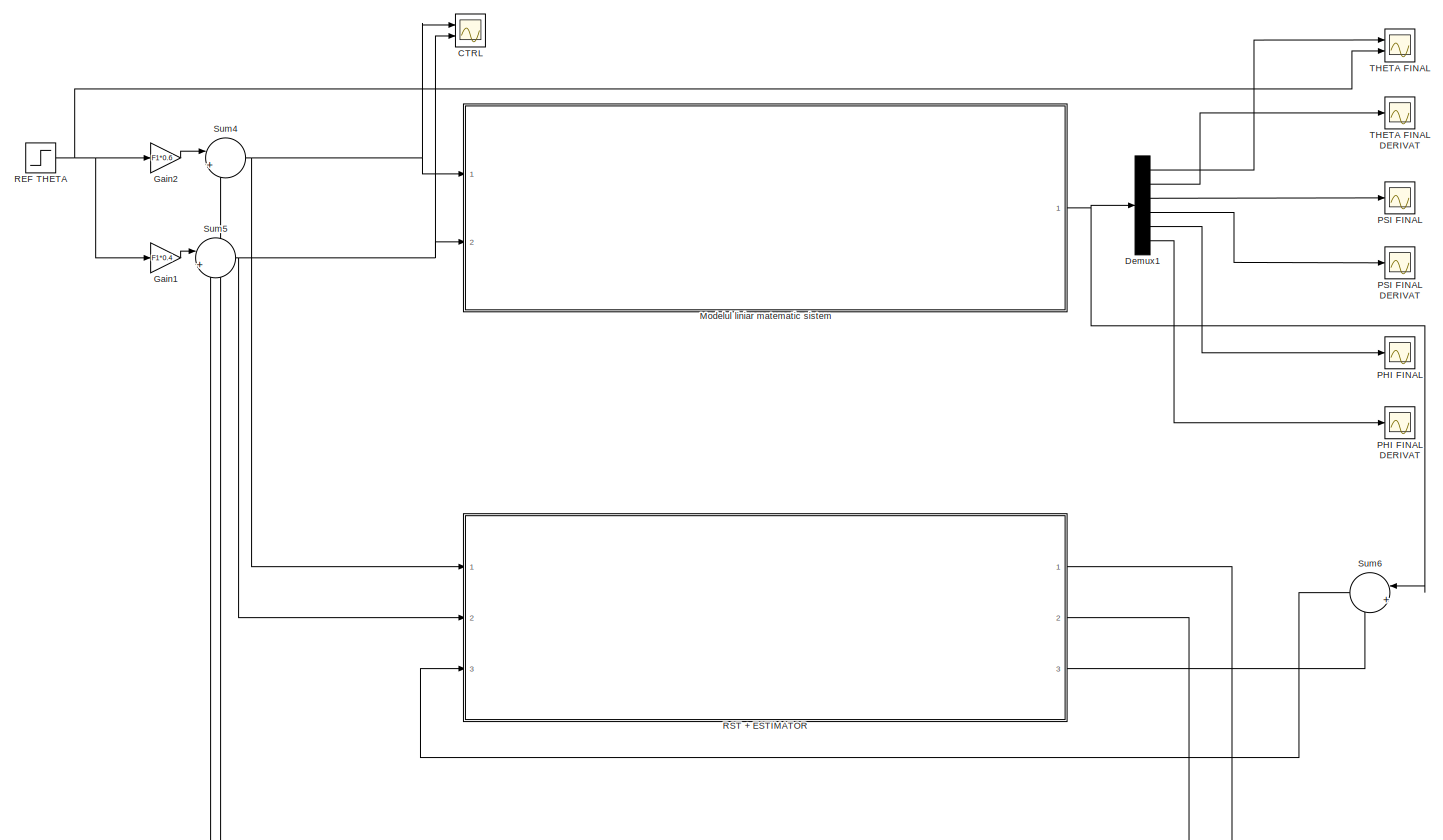
[diagram: root canvas - part 1/1, most of the canvas]
MODEL slx_d8414251c9a4
KIND model
CONFIG AbsTol = auto
CONFIG EnableMultiTasking = off
CONFIG FixedStep = auto
CONFIG MaxStep = auto
CONFIG MinStep = auto
CONFIG RelTol = 1e-3
CONFIG SampleTimeConstraint = Unconstrained
CONFIG Solver = VariableStepAuto
CONFIG SolverName = VariableStepAuto
CONFIG StartTime = 0.0
CONFIG StopTime = 100
BLOCK [Scope] CTRL 
  Floating = off
  NumInputPorts = 2
  Ports = [2]
  ScopeSpecificationString = Simulink.scopes.TimeScopeBlockCfg('CurrentConfiguration', extmgr.ConfigurationSet(extmgr.Configuration('Core','General UI',true),extmgr.Configuration('Core','Source UI',true),extmgr.Configuration('Sources','WiredSimulink',true,'DataLoggingVariableName','ScopeData1'),extmgr.Configuration('Visuals','Time Domain',true,'SerializedDisplays',{struct('MinYLimReal','-0.45605','MaxYLimReal','0.68234','YLab...<+1478ch>
BLOCK [Demux] Demux1
  DisplayOption = bar
  Outputs = 6
  Ports = [1, 6]
BLOCK [Gain] Gain1
  Gain = F1*0.4
  OutDataTypeStr = Inherit: Inherit via internal rule
  ParamDataTypeStr = Inherit: Inherit via internal rule
  SaturateOnIntegerOverflow = off
BLOCK [Gain] Gain2
  Gain = F1*0.6
  OutDataTypeStr = Inherit: Inherit via internal rule
  ParamDataTypeStr = Inherit: Inherit via internal rule
  SaturateOnIntegerOverflow = off
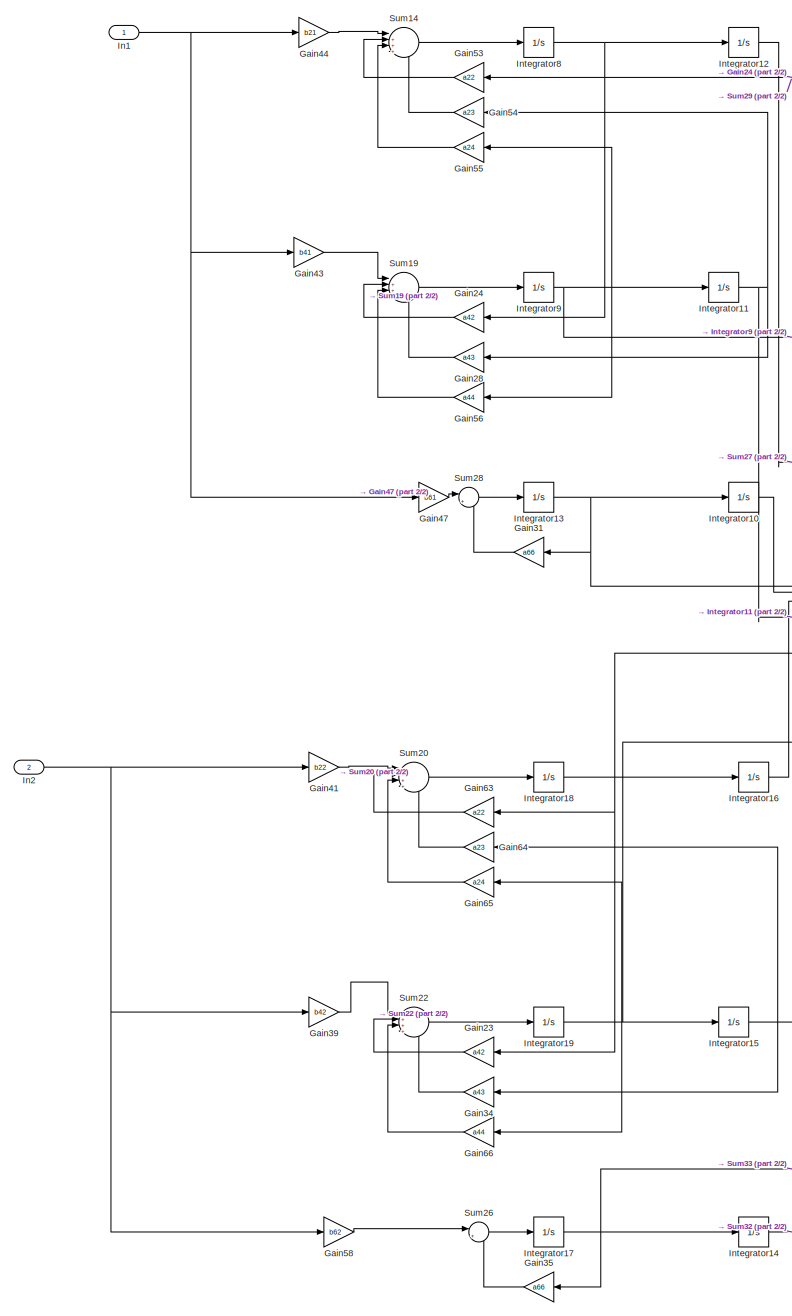
[diagram: Modelul liniar matematic sistem - part 1/2, left side, full height]
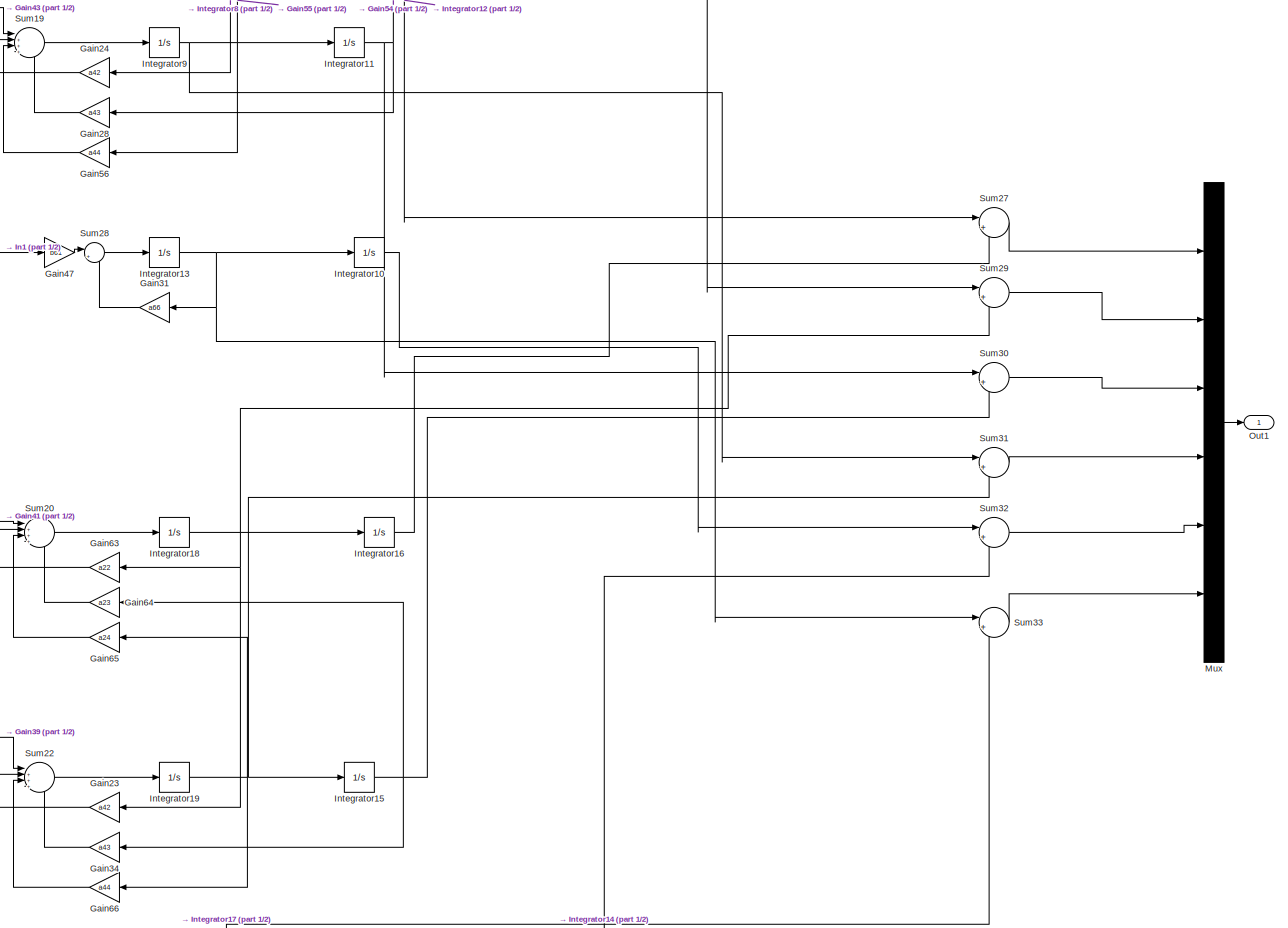
[diagram: Modelul liniar matematic sistem - part 2/2, full width, middle band]
BLOCK [SubSystem] Modelul liniar matematic sistem
  Ports = [2, 1]
  RequestExecContextInheritance = off
BLOCK [Gain] Modelul liniar matematic sistem/Gain23
  Gain = a42
  OutDataTypeStr = Inherit: Inherit via internal rule
  ParamDataTypeStr = Inherit: Inherit via internal rule
  SaturateOnIntegerOverflow = off
BLOCK [Gain] Modelul liniar matematic sistem/Gain24
  Gain = a42
  OutDataTypeStr = Inherit: Inherit via internal rule
  ParamDataTypeStr = Inherit: Inherit via internal rule
  SaturateOnIntegerOverflow = off
BLOCK [Gain] Modelul liniar matematic sistem/Gain28
  Gain = a43
  OutDataTypeStr = Inherit: Inherit via internal rule
  ParamDataTypeStr = Inherit: Inherit via internal rule
  SaturateOnIntegerOverflow = off
BLOCK [Gain] Modelul liniar matematic sistem/Gain31
  Gain = a66
  OutDataTypeStr = Inherit: Inherit via internal rule
  ParamDataTypeStr = Inherit: Inherit via internal rule
  SaturateOnIntegerOverflow = off
BLOCK [Gain] Modelul liniar matematic sistem/Gain34
  Gain = a43
  OutDataTypeStr = Inherit: Inherit via internal rule
  ParamDataTypeStr = Inherit: Inherit via internal rule
  SaturateOnIntegerOverflow = off
BLOCK [Gain] Modelul liniar matematic sistem/Gain35
  Gain = a66
  OutDataTypeStr = Inherit: Inherit via internal rule
  ParamDataTypeStr = Inherit: Inherit via internal rule
  SaturateOnIntegerOverflow = off
BLOCK [Gain] Modelul liniar matematic sistem/Gain39
  Gain = b42
  OutDataTypeStr = Inherit: Inherit via internal rule
  ParamDataTypeStr = Inherit: Inherit via internal rule
  SaturateOnIntegerOverflow = off
BLOCK [Gain] Modelul liniar matematic sistem/Gain41
  Gain = b22
  OutDataTypeStr = Inherit: Inherit via internal rule
  ParamDataTypeStr = Inherit: Inherit via internal rule
  SaturateOnIntegerOverflow = off
BLOCK [Gain] Modelul liniar matematic sistem/Gain43
  Gain = b41
  OutDataTypeStr = Inherit: Inherit via internal rule
  ParamDataTypeStr = Inherit: Inherit via internal rule
  SaturateOnIntegerOverflow = off
BLOCK [Gain] Modelul liniar matematic sistem/Gain44
  Gain = b21
  OutDataTypeStr = Inherit: Inherit via internal rule
  ParamDataTypeStr = Inherit: Inherit via internal rule
  SaturateOnIntegerOverflow = off
BLOCK [Gain] Modelul liniar matematic sistem/Gain47
  Gain = b61
  OutDataTypeStr = Inherit: Inherit via internal rule
  ParamDataTypeStr = Inherit: Inherit via internal rule
  SaturateOnIntegerOverflow = off
BLOCK [Gain] Modelul liniar matematic sistem/Gain53
  Gain = a22
  OutDataTypeStr = Inherit: Inherit via internal rule
  ParamDataTypeStr = Inherit: Inherit via internal rule
  SaturateOnIntegerOverflow = off
BLOCK [Gain] Modelul liniar matematic sistem/Gain54
  Gain = a23
  OutDataTypeStr = Inherit: Inherit via internal rule
  ParamDataTypeStr = Inherit: Inherit via internal rule
  SaturateOnIntegerOverflow = off
BLOCK [Gain] Modelul liniar matematic sistem/Gain55
  Gain = a24
  OutDataTypeStr = Inherit: Inherit via internal rule
  ParamDataTypeStr = Inherit: Inherit via internal rule
  SaturateOnIntegerOverflow = off
BLOCK [Gain] Modelul liniar matematic sistem/Gain56
  Gain = a44
  OutDataTypeStr = Inherit: Inherit via internal rule
  ParamDataTypeStr = Inherit: Inherit via internal rule
  SaturateOnIntegerOverflow = off
BLOCK [Gain] Modelul liniar matematic sistem/Gain58
  Gain = b62
  OutDataTypeStr = Inherit: Inherit via internal rule
  ParamDataTypeStr = Inherit: Inherit via internal rule
  SaturateOnIntegerOverflow = off
BLOCK [Gain] Modelul liniar matematic sistem/Gain63
  Gain = a22
  OutDataTypeStr = Inherit: Inherit via internal rule
  ParamDataTypeStr = Inherit: Inherit via internal rule
  SaturateOnIntegerOverflow = off
BLOCK [Gain] Modelul liniar matematic sistem/Gain64
  Gain = a23
  OutDataTypeStr = Inherit: Inherit via internal rule
  ParamDataTypeStr = Inherit: Inherit via internal rule
  SaturateOnIntegerOverflow = off
BLOCK [Gain] Modelul liniar matematic sistem/Gain65
  Gain = a24
  OutDataTypeStr = Inherit: Inherit via internal rule
  ParamDataTypeStr = Inherit: Inherit via internal rule
  SaturateOnIntegerOverflow = off
BLOCK [Gain] Modelul liniar matematic sistem/Gain66
  Gain = a44
  OutDataTypeStr = Inherit: Inherit via internal rule
  ParamDataTypeStr = Inherit: Inherit via internal rule
  SaturateOnIntegerOverflow = off
BLOCK [Inport] Modelul liniar matematic sistem/In1
  IconDisplay = Port number
BLOCK [Inport] Modelul liniar matematic sistem/In2
  IconDisplay = Port number
  Port = 2
BLOCK [Integrator] Modelul liniar matematic sistem/Integrator10
  Ports = [1, 1]
BLOCK [Integrator] Modelul liniar matematic sistem/Integrator11
  Ports = [1, 1]
BLOCK [Integrator] Modelul liniar matematic sistem/Integrator12
  Ports = [1, 1]
BLOCK [Integrator] Modelul liniar matematic sistem/Integrator13
  Ports = [1, 1]
BLOCK [Integrator] Modelul liniar matematic sistem/Integrator14
  Ports = [1, 1]
BLOCK [Integrator] Modelul liniar matematic sistem/Integrator15
  Ports = [1, 1]
BLOCK [Integrator] Modelul liniar matematic sistem/Integrator16
  Ports = [1, 1]
BLOCK [Integrator] Modelul liniar matematic sistem/Integrator17
  Ports = [1, 1]
BLOCK [Integrator] Modelul liniar matematic sistem/Integrator18
  Ports = [1, 1]
BLOCK [Integrator] Modelul liniar matematic sistem/Integrator19
  Ports = [1, 1]
BLOCK [Integrator] Modelul liniar matematic sistem/Integrator8
  Ports = [1, 1]
BLOCK [Integrator] Modelul liniar matematic sistem/Integrator9
  Ports = [1, 1]
BLOCK [Mux] Modelul liniar matematic sistem/Mux
  DisplayOption = bar
  Inputs = 6
  Ports = [6, 1]
BLOCK [Outport] Modelul liniar matematic sistem/Out1
  IconDisplay = Port number
BLOCK [Sum] Modelul liniar matematic sistem/Sum14
  IconShape = round
  InputSameDT = off
  Inputs = |++++
  OutDataTypeStr = Inherit: Inherit via internal rule
  Ports = [4, 1]
  SaturateOnIntegerOverflow = off
BLOCK [Sum] Modelul liniar matematic sistem/Sum19
  IconShape = round
  InputSameDT = off
  Inputs = |++++
  OutDataTypeStr = Inherit: Inherit via internal rule
  Ports = [4, 1]
  SaturateOnIntegerOverflow = off
BLOCK [Sum] Modelul liniar matematic sistem/Sum20
  IconShape = round
  InputSameDT = off
  Inputs = |++++
  OutDataTypeStr = Inherit: Inherit via internal rule
  Ports = [4, 1]
  SaturateOnIntegerOverflow = off
BLOCK [Sum] Modelul liniar matematic sistem/Sum22
  IconShape = round
  InputSameDT = off
  Inputs = |++++
  OutDataTypeStr = Inherit: Inherit via internal rule
  Ports = [4, 1]
  SaturateOnIntegerOverflow = off
BLOCK [Sum] Modelul liniar matematic sistem/Sum26
  IconShape = round
  InputSameDT = off
  Inputs = |++
  OutDataTypeStr = Inherit: Inherit via internal rule
  Ports = [2, 1]
  SaturateOnIntegerOverflow = off
BLOCK [Sum] Modelul liniar matematic sistem/Sum27
  IconShape = round
  InputSameDT = off
  Inputs = |++
  OutDataTypeStr = Inherit: Inherit via internal rule
  Ports = [2, 1]
  SaturateOnIntegerOverflow = off
BLOCK [Sum] Modelul liniar matematic sistem/Sum28
  IconShape = round
  InputSameDT = off
  Inputs = |++
  OutDataTypeStr = Inherit: Inherit via internal rule
  Ports = [2, 1]
  SaturateOnIntegerOverflow = off
BLOCK [Sum] Modelul liniar matematic sistem/Sum29
  IconShape = round
  InputSameDT = off
  Inputs = |++
  OutDataTypeStr = Inherit: Inherit via internal rule
  Ports = [2, 1]
  SaturateOnIntegerOverflow = off
BLOCK [Sum] Modelul liniar matematic sistem/Sum30
  IconShape = round
  InputSameDT = off
  Inputs = |++
  OutDataTypeStr = Inherit: Inherit via internal rule
  Ports = [2, 1]
  SaturateOnIntegerOverflow = off
BLOCK [Sum] Modelul liniar matematic sistem/Sum31
  IconShape = round
  InputSameDT = off
  Inputs = |++
  OutDataTypeStr = Inherit: Inherit via internal rule
  Ports = [2, 1]
  SaturateOnIntegerOverflow = off
BLOCK [Sum] Modelul liniar matematic sistem/Sum32
  IconShape = round
  InputSameDT = off
  Inputs = |++
  OutDataTypeStr = Inherit: Inherit via internal rule
  Ports = [2, 1]
  SaturateOnIntegerOverflow = off
BLOCK [Sum] Modelul liniar matematic sistem/Sum33
  IconShape = round
  InputSameDT = off
  Inputs = |++
  OutDataTypeStr = Inherit: Inherit via internal rule
  Ports = [2, 1]
  SaturateOnIntegerOverflow = off
BLOCK [Scope] PHI FINAL
  Floating = off
  NumInputPorts = 1
  Ports = [1]
  ScopeSpecificationString = Simulink.scopes.TimeScopeBlockCfg('CurrentConfiguration', extmgr.ConfigurationSet(extmgr.Configuration('Core','General UI',true),extmgr.Configuration('Core','Source UI',true),extmgr.Configuration('Sources','WiredSimulink',true,'DataLoggingVariableName','ScopeData3'),extmgr.Configuration('Visuals','Time Domain',true,'SerializedDisplays',{struct('MinYLimReal','-0.85228','MaxYLimReal','0.09841','YLab...<+1419ch>
BLOCK [Scope] PHI FINAL DERIVAT 
  Floating = off
  NumInputPorts = 1
  Ports = [1]
  ScopeSpecificationString = Simulink.scopes.TimeScopeBlockCfg('CurrentConfiguration', extmgr.ConfigurationSet(extmgr.Configuration('Core','General UI',true),extmgr.Configuration('Core','Source UI',true),extmgr.Configuration('Sources','WiredSimulink',true,'DataLoggingVariableName','ScopeData2'),extmgr.Configuration('Visuals','Time Domain',true,'SerializedDisplays',{struct('MinYLimReal','-0.44748','MaxYLimReal','0.08352','YLab...<+1425ch>
BLOCK [Scope] PSI FINAL
  Floating = off
  NumInputPorts = 1
  Ports = [1]
  ScopeSpecificationString = Simulink.scopes.TimeScopeBlockCfg('CurrentConfiguration', extmgr.ConfigurationSet(extmgr.Configuration('Core','General UI',true),extmgr.Configuration('Core','Source UI',true),extmgr.Configuration('Sources','WiredSimulink',true,'DataLoggingVariableName','ScopeData5'),extmgr.Configuration('Visuals','Time Domain',true,'SerializedDisplays',{struct('MinYLimReal','-0.00428','MaxYLimReal','0.00872','YLab...<+1447ch>
BLOCK [Scope] PSI FINAL DERIVAT 
  Floating = off
  NumInputPorts = 1
  Ports = [1]
  ScopeSpecificationString = Simulink.scopes.TimeScopeBlockCfg('CurrentConfiguration', extmgr.ConfigurationSet(extmgr.Configuration('Core','General UI',true),extmgr.Configuration('Core','Source UI',true),extmgr.Configuration('Sources','WiredSimulink',true,'DataLoggingVariableName','ScopeData4'),extmgr.Configuration('Visuals','Time Domain',true,'SerializedDisplays',{struct('MinYLimReal','-0.01554','MaxYLimReal','0.02337','YLab...<+1450ch>
BLOCK [Step] REF THETA 
  SampleTime = 0
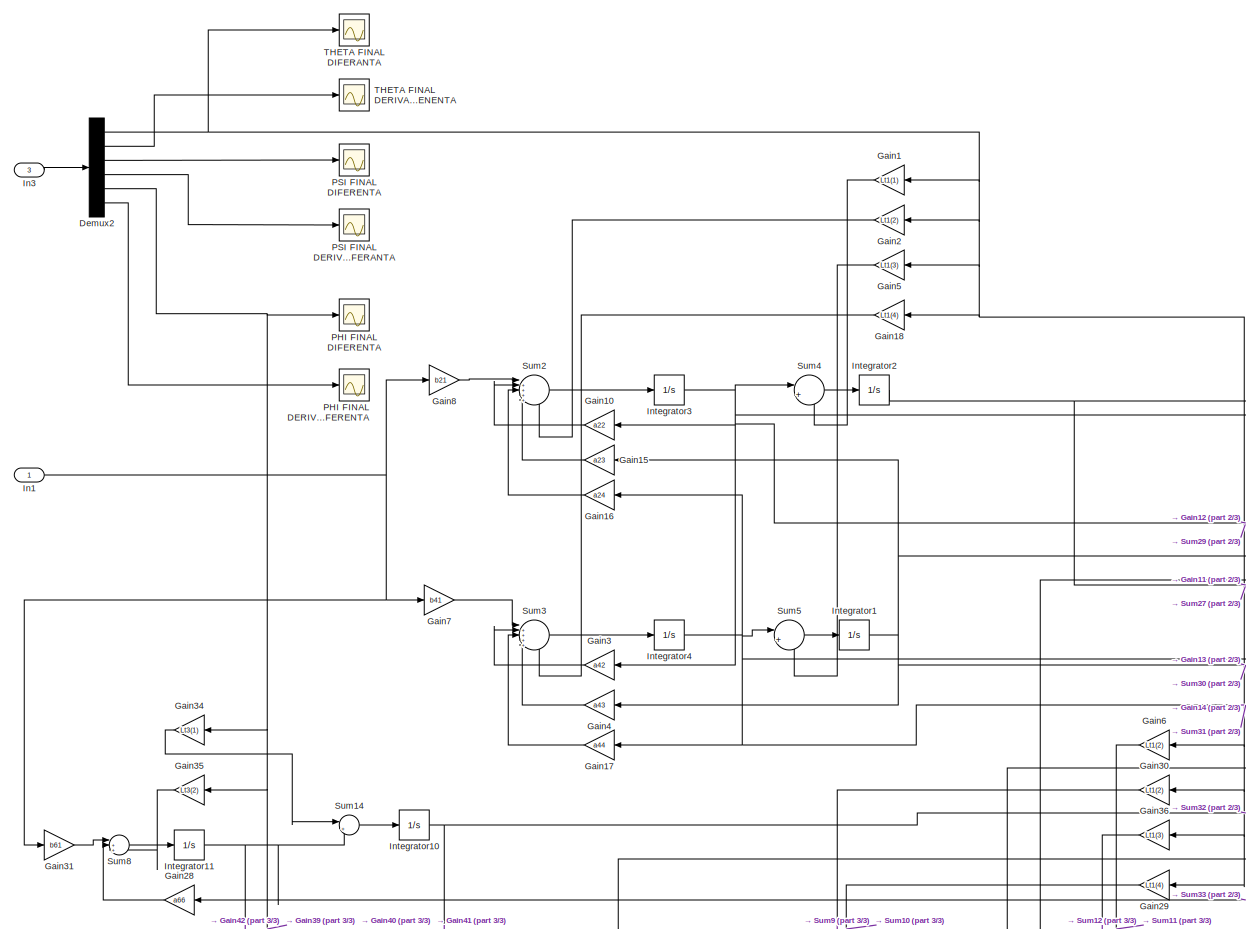
[diagram: RST + ESTIMATOR  - part 1/3, top left region]
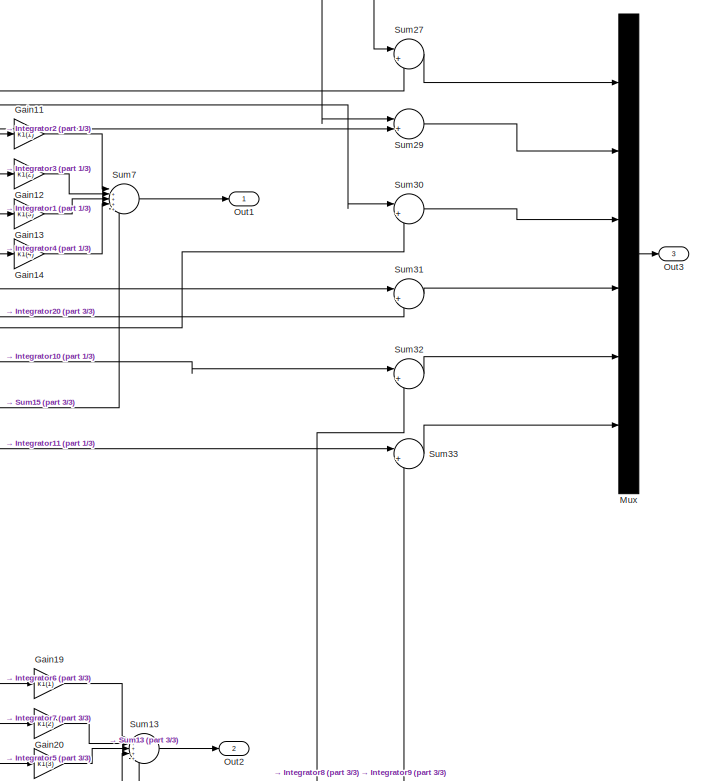
[diagram: RST + ESTIMATOR  - part 2/3, middle right region]
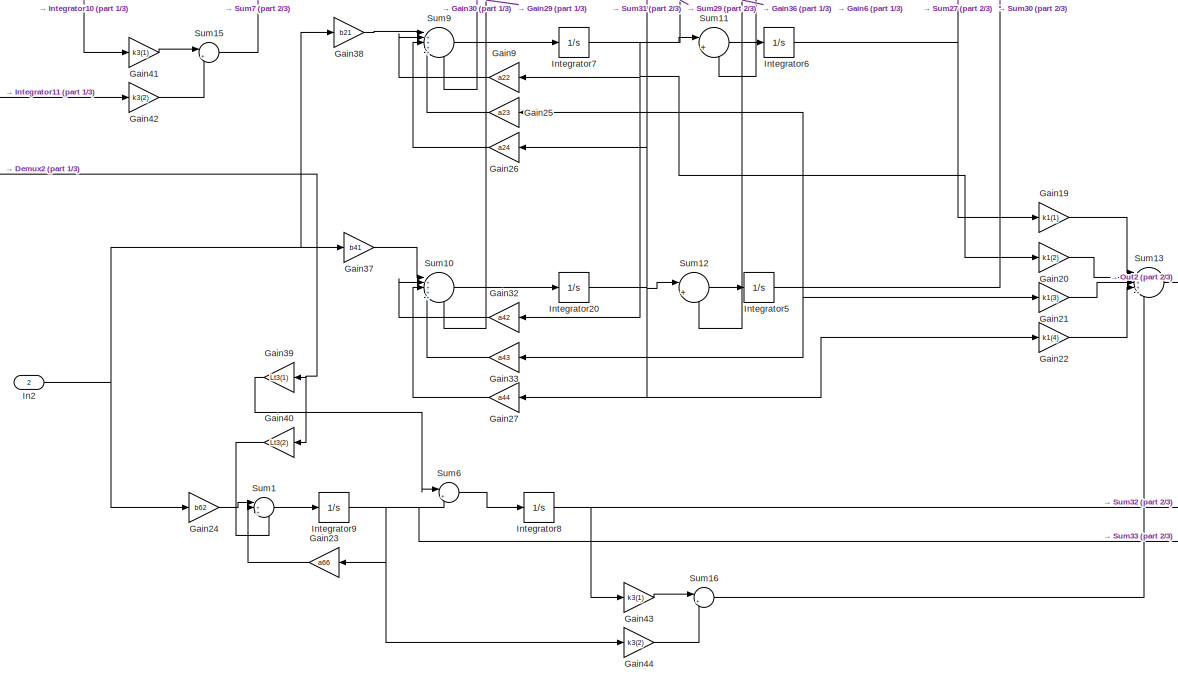
[diagram: RST + ESTIMATOR  - part 3/3, bottom center region]
BLOCK [SubSystem] RST + ESTIMATOR 
  Ports = [3, 3]
  RequestExecContextInheritance = off
BLOCK [Demux] RST + ESTIMATOR /Demux2
  DisplayOption = bar
  Outputs = 6
  Ports = [1, 6]
BLOCK [Gain] RST + ESTIMATOR /Gain1
  Gain = Lt1(1)
  OutDataTypeStr = Inherit: Inherit via internal rule
  ParamDataTypeStr = Inherit: Inherit via internal rule
  SaturateOnIntegerOverflow = off
BLOCK [Gain] RST + ESTIMATOR /Gain10
  Gain = a22
  OutDataTypeStr = Inherit: Inherit via internal rule
  ParamDataTypeStr = Inherit: Inherit via internal rule
  SaturateOnIntegerOverflow = off
BLOCK [Gain] RST + ESTIMATOR /Gain11
  Gain = k1(1)
  OutDataTypeStr = Inherit: Inherit via internal rule
  ParamDataTypeStr = Inherit: Inherit via internal rule
  SaturateOnIntegerOverflow = off
BLOCK [Gain] RST + ESTIMATOR /Gain12
  Gain = k1(2)
  OutDataTypeStr = Inherit: Inherit via internal rule
  ParamDataTypeStr = Inherit: Inherit via internal rule
  SaturateOnIntegerOverflow = off
BLOCK [Gain] RST + ESTIMATOR /Gain13
  Gain = k1(3)
  OutDataTypeStr = Inherit: Inherit via internal rule
  ParamDataTypeStr = Inherit: Inherit via internal rule
  SaturateOnIntegerOverflow = off
BLOCK [Gain] RST + ESTIMATOR /Gain14
  Gain = k1(4)
  OutDataTypeStr = Inherit: Inherit via internal rule
  ParamDataTypeStr = Inherit: Inherit via internal rule
  SaturateOnIntegerOverflow = off
BLOCK [Gain] RST + ESTIMATOR /Gain15
  Gain = a23
  OutDataTypeStr = Inherit: Inherit via internal rule
  ParamDataTypeStr = Inherit: Inherit via internal rule
  SaturateOnIntegerOverflow = off
BLOCK [Gain] RST + ESTIMATOR /Gain16
  Gain = a24
  OutDataTypeStr = Inherit: Inherit via internal rule
  ParamDataTypeStr = Inherit: Inherit via internal rule
  SaturateOnIntegerOverflow = off
BLOCK [Gain] RST + ESTIMATOR /Gain17
  Gain = a44
  OutDataTypeStr = Inherit: Inherit via internal rule
  ParamDataTypeStr = Inherit: Inherit via internal rule
  SaturateOnIntegerOverflow = off
BLOCK [Gain] RST + ESTIMATOR /Gain18
  Gain = Lt1(4)
  OutDataTypeStr = Inherit: Inherit via internal rule
  ParamDataTypeStr = Inherit: Inherit via internal rule
  SaturateOnIntegerOverflow = off
BLOCK [Gain] RST + ESTIMATOR /Gain19
  Gain = k1(1)
  OutDataTypeStr = Inherit: Inherit via internal rule
  ParamDataTypeStr = Inherit: Inherit via internal rule
  SaturateOnIntegerOverflow = off
BLOCK [Gain] RST + ESTIMATOR /Gain2
  Gain = Lt1(2)
  OutDataTypeStr = Inherit: Inherit via internal rule
  ParamDataTypeStr = Inherit: Inherit via internal rule
  SaturateOnIntegerOverflow = off
BLOCK [Gain] RST + ESTIMATOR /Gain20
  Gain = k1(2)
  OutDataTypeStr = Inherit: Inherit via internal rule
  ParamDataTypeStr = Inherit: Inherit via internal rule
  SaturateOnIntegerOverflow = off
BLOCK [Gain] RST + ESTIMATOR /Gain21
  Gain = k1(3)
  OutDataTypeStr = Inherit: Inherit via internal rule
  ParamDataTypeStr = Inherit: Inherit via internal rule
  SaturateOnIntegerOverflow = off
BLOCK [Gain] RST + ESTIMATOR /Gain22
  Gain = k1(4)
  OutDataTypeStr = Inherit: Inherit via internal rule
  ParamDataTypeStr = Inherit: Inherit via internal rule
  SaturateOnIntegerOverflow = off
BLOCK [Gain] RST + ESTIMATOR /Gain23
  Gain = a66
  OutDataTypeStr = Inherit: Inherit via internal rule
  ParamDataTypeStr = Inherit: Inherit via internal rule
  SaturateOnIntegerOverflow = off
BLOCK [Gain] RST + ESTIMATOR /Gain24
  Gain = b62
  OutDataTypeStr = Inherit: Inherit via internal rule
  ParamDataTypeStr = Inherit: Inherit via internal rule
  SaturateOnIntegerOverflow = off
BLOCK [Gain] RST + ESTIMATOR /Gain25
  Gain = a23
  OutDataTypeStr = Inherit: Inherit via internal rule
  ParamDataTypeStr = Inherit: Inherit via internal rule
  SaturateOnIntegerOverflow = off
BLOCK [Gain] RST + ESTIMATOR /Gain26
  Gain = a24
  OutDataTypeStr = Inherit: Inherit via internal rule
  ParamDataTypeStr = Inherit: Inherit via internal rule
  SaturateOnIntegerOverflow = off
BLOCK [Gain] RST + ESTIMATOR /Gain27
  Gain = a44
  OutDataTypeStr = Inherit: Inherit via internal rule
  ParamDataTypeStr = Inherit: Inherit via internal rule
  SaturateOnIntegerOverflow = off
BLOCK [Gain] RST + ESTIMATOR /Gain28
  Gain = a66
  OutDataTypeStr = Inherit: Inherit via internal rule
  ParamDataTypeStr = Inherit: Inherit via internal rule
  SaturateOnIntegerOverflow = off
BLOCK [Gain] RST + ESTIMATOR /Gain29
  Gain = Lt1(4)
  OutDataTypeStr = Inherit: Inherit via internal rule
  ParamDataTypeStr = Inherit: Inherit via internal rule
  SaturateOnIntegerOverflow = off
BLOCK [Gain] RST + ESTIMATOR /Gain3
  Gain = a42
  OutDataTypeStr = Inherit: Inherit via internal rule
  ParamDataTypeStr = Inherit: Inherit via internal rule
  SaturateOnIntegerOverflow = off
BLOCK [Gain] RST + ESTIMATOR /Gain30
  Gain = Lt1(2)
  OutDataTypeStr = Inherit: Inherit via internal rule
  ParamDataTypeStr = Inherit: Inherit via internal rule
  SaturateOnIntegerOverflow = off
BLOCK [Gain] RST + ESTIMATOR /Gain31
  Gain = b61
  OutDataTypeStr = Inherit: Inherit via internal rule
  ParamDataTypeStr = Inherit: Inherit via internal rule
  SaturateOnIntegerOverflow = off
BLOCK [Gain] RST + ESTIMATOR /Gain32
  Gain = a42
  OutDataTypeStr = Inherit: Inherit via internal rule
  ParamDataTypeStr = Inherit: Inherit via internal rule
  SaturateOnIntegerOverflow = off
BLOCK [Gain] RST + ESTIMATOR /Gain33
  Gain = a43
  OutDataTypeStr = Inherit: Inherit via internal rule
  ParamDataTypeStr = Inherit: Inherit via internal rule
  SaturateOnIntegerOverflow = off
BLOCK [Gain] RST + ESTIMATOR /Gain34
  Gain = Lt3(1)
  OutDataTypeStr = Inherit: Inherit via internal rule
  ParamDataTypeStr = Inherit: Inherit via internal rule
  SaturateOnIntegerOverflow = off
BLOCK [Gain] RST + ESTIMATOR /Gain35
  Gain = Lt3(2)
  OutDataTypeStr = Inherit: Inherit via internal rule
  ParamDataTypeStr = Inherit: Inherit via internal rule
  SaturateOnIntegerOverflow = off
BLOCK [Gain] RST + ESTIMATOR /Gain36
  Gain = Lt1(3)
  OutDataTypeStr = Inherit: Inherit via internal rule
  ParamDataTypeStr = Inherit: Inherit via internal rule
  SaturateOnIntegerOverflow = off
BLOCK [Gain] RST + ESTIMATOR /Gain37
  Gain = b41
  OutDataTypeStr = Inherit: Inherit via internal rule
  ParamDataTypeStr = Inherit: Inherit via internal rule
  SaturateOnIntegerOverflow = off
BLOCK [Gain] RST + ESTIMATOR /Gain38
  Gain = b21
  OutDataTypeStr = Inherit: Inherit via internal rule
  ParamDataTypeStr = Inherit: Inherit via internal rule
  SaturateOnIntegerOverflow = off
BLOCK [Gain] RST + ESTIMATOR /Gain39
  Gain = Lt3(1)
  OutDataTypeStr = Inherit: Inherit via internal rule
  ParamDataTypeStr = Inherit: Inherit via internal rule
  SaturateOnIntegerOverflow = off
BLOCK [Gain] RST + ESTIMATOR /Gain4
  Gain = a43
  OutDataTypeStr = Inherit: Inherit via internal rule
  ParamDataTypeStr = Inherit: Inherit via internal rule
  SaturateOnIntegerOverflow = off
BLOCK [Gain] RST + ESTIMATOR /Gain40
  Gain = Lt3(2)
  OutDataTypeStr = Inherit: Inherit via internal rule
  ParamDataTypeStr = Inherit: Inherit via internal rule
  SaturateOnIntegerOverflow = off
BLOCK [Gain] RST + ESTIMATOR /Gain41
  Gain = k3(1)
  OutDataTypeStr = Inherit: Inherit via internal rule
  ParamDataTypeStr = Inherit: Inherit via internal rule
  SaturateOnIntegerOverflow = off
BLOCK [Gain] RST + ESTIMATOR /Gain42
  Gain = k3(2)
  OutDataTypeStr = Inherit: Inherit via internal rule
  ParamDataTypeStr = Inherit: Inherit via internal rule
  SaturateOnIntegerOverflow = off
BLOCK [Gain] RST + ESTIMATOR /Gain43
  Gain = k3(1)
  OutDataTypeStr = Inherit: Inherit via internal rule
  ParamDataTypeStr = Inherit: Inherit via internal rule
  SaturateOnIntegerOverflow = off
BLOCK [Gain] RST + ESTIMATOR /Gain44
  Gain = k3(2)
  OutDataTypeStr = Inherit: Inherit via internal rule
  ParamDataTypeStr = Inherit: Inherit via internal rule
  SaturateOnIntegerOverflow = off
BLOCK [Gain] RST + ESTIMATOR /Gain5
  Gain = Lt1(3)
  OutDataTypeStr = Inherit: Inherit via internal rule
  ParamDataTypeStr = Inherit: Inherit via internal rule
  SaturateOnIntegerOverflow = off
BLOCK [Gain] RST + ESTIMATOR /Gain6
  Gain = Lt1(2)
  OutDataTypeStr = Inherit: Inherit via internal rule
  ParamDataTypeStr = Inherit: Inherit via internal rule
  SaturateOnIntegerOverflow = off
BLOCK [Gain] RST + ESTIMATOR /Gain7
  Gain = b41
  OutDataTypeStr = Inherit: Inherit via internal rule
  ParamDataTypeStr = Inherit: Inherit via internal rule
  SaturateOnIntegerOverflow = off
BLOCK [Gain] RST + ESTIMATOR /Gain8
  Gain = b21
  OutDataTypeStr = Inherit: Inherit via internal rule
  ParamDataTypeStr = Inherit: Inherit via internal rule
  SaturateOnIntegerOverflow = off
BLOCK [Gain] RST + ESTIMATOR /Gain9
  Gain = a22
  OutDataTypeStr = Inherit: Inherit via internal rule
  ParamDataTypeStr = Inherit: Inherit via internal rule
  SaturateOnIntegerOverflow = off
BLOCK [Inport] RST + ESTIMATOR /In1
  IconDisplay = Port number
BLOCK [Inport] RST + ESTIMATOR /In2
  IconDisplay = Port number
  Port = 2
BLOCK [Inport] RST + ESTIMATOR /In3
  IconDisplay = Port number
  Port = 3
BLOCK [Integrator] RST + ESTIMATOR /Integrator1
  Ports = [1, 1]
BLOCK [Integrator] RST + ESTIMATOR /Integrator10
  Ports = [1, 1]
BLOCK [Integrator] RST + ESTIMATOR /Integrator11
  Ports = [1, 1]
BLOCK [Integrator] RST + ESTIMATOR /Integrator2
  Ports = [1, 1]
BLOCK [Integrator] RST + ESTIMATOR /Integrator20
  Ports = [1, 1]
BLOCK [Integrator] RST + ESTIMATOR /Integrator3
  Ports = [1, 1]
BLOCK [Integrator] RST + ESTIMATOR /Integrator4
  Ports = [1, 1]
BLOCK [Integrator] RST + ESTIMATOR /Integrator5
  Ports = [1, 1]
BLOCK [Integrator] RST + ESTIMATOR /Integrator6
  Ports = [1, 1]
BLOCK [Integrator] RST + ESTIMATOR /Integrator7
  Ports = [1, 1]
BLOCK [Integrator] RST + ESTIMATOR /Integrator8
  Ports = [1, 1]
BLOCK [Integrator] RST + ESTIMATOR /Integrator9
  Ports = [1, 1]
BLOCK [Mux] RST + ESTIMATOR /Mux
  DisplayOption = bar
  Inputs = 6
  Ports = [6, 1]
BLOCK [Outport] RST + ESTIMATOR /Out1
  IconDisplay = Port number
BLOCK [Outport] RST + ESTIMATOR /Out2
  IconDisplay = Port number
  Port = 2
BLOCK [Outport] RST + ESTIMATOR /Out3
  IconDisplay = Port number
  Port = 3
BLOCK [Scope] RST + ESTIMATOR /PHI FINAL DERIVAT DIFERENTA
  Floating = off
  NumInputPorts = 1
  Ports = [1]
  ScopeSpecificationString = Simulink.scopes.TimeScopeBlockCfg('CurrentConfiguration', extmgr.ConfigurationSet(extmgr.Configuration('Core','General UI',true),extmgr.Configuration('Core','Source UI',true),extmgr.Configuration('Sources','WiredSimulink',true,'DataLoggingVariableName','ScopeData1'),extmgr.Configuration('Visuals','Time Domain',true,'SerializedDisplays',{struct('MinYLimReal','-0.0000000000017','MaxYLimReal','0.0000...<+1450ch>
BLOCK [Scope] RST + ESTIMATOR /PHI FINAL DIFERENTA
  Floating = off
  NumInputPorts = 1
  Ports = [1]
  ScopeSpecificationString = Simulink.scopes.TimeScopeBlockCfg('CurrentConfiguration', extmgr.ConfigurationSet(extmgr.Configuration('Core','General UI',true),extmgr.Configuration('Core','Source UI',true),extmgr.Configuration('Sources','WiredSimulink',true,'DataLoggingVariableName','ScopeData2'),extmgr.Configuration('Visuals','Time Domain',true,'SerializedDisplays',{struct('MinYLimReal','-0.0000000000000012','MaxYLimReal','0.0...<+1474ch>
BLOCK [Scope] RST + ESTIMATOR /PSI FINAL DERIVAT DIFERANTA
  Floating = off
  NumInputPorts = 1
  Ports = [1]
  ScopeSpecificationString = Simulink.scopes.TimeScopeBlockCfg('CurrentConfiguration', extmgr.ConfigurationSet(extmgr.Configuration('Core','General UI',true),extmgr.Configuration('Core','Source UI',true),extmgr.Configuration('Sources','WiredSimulink',true,'DataLoggingVariableName','ScopeData3'),extmgr.Configuration('Visuals','Time Domain',true,'SerializedDisplays',{struct('MinYLimReal','-0.000012','MaxYLimReal','0.000007','YL...<+1448ch>
BLOCK [Scope] RST + ESTIMATOR /PSI FINAL DIFERENTA
  Floating = off
  NumInputPorts = 1
  Ports = [1]
  ScopeSpecificationString = Simulink.scopes.TimeScopeBlockCfg('CurrentConfiguration', extmgr.ConfigurationSet(extmgr.Configuration('Core','General UI',true),extmgr.Configuration('Core','Source UI',true),extmgr.Configuration('Sources','WiredSimulink',true,'DataLoggingVariableName','ScopeData7'),extmgr.Configuration('Visuals','Time Domain',true,'SerializedDisplays',{struct('MinYLimReal','-0.00000011','MaxYLimReal','0.00000017'...<+1466ch>
BLOCK [Sum] RST + ESTIMATOR /Sum1
  IconShape = round
  InputSameDT = off
  Inputs = |+++
  OutDataTypeStr = Inherit: Inherit via internal rule
  Ports = [3, 1]
  SaturateOnIntegerOverflow = off
BLOCK [Sum] RST + ESTIMATOR /Sum10
  IconShape = round
  InputSameDT = off
  Inputs = |+++++
  OutDataTypeStr = Inherit: Inherit via internal rule
  Ports = [5, 1]
  SaturateOnIntegerOverflow = off
BLOCK [Sum] RST + ESTIMATOR /Sum11
  IconShape = round
  InputSameDT = off
  Inputs = |++
  OutDataTypeStr = Inherit: Inherit via internal rule
  Ports = [2, 1]
  SaturateOnIntegerOverflow = off
BLOCK [Sum] RST + ESTIMATOR /Sum12
  IconShape = round
  InputSameDT = off
  Inputs = |++
  OutDataTypeStr = Inherit: Inherit via internal rule
  Ports = [2, 1]
  SaturateOnIntegerOverflow = off
BLOCK [Sum] RST + ESTIMATOR /Sum13
  IconShape = round
  InputSameDT = off
  Inputs = |+++++
  OutDataTypeStr = Inherit: Inherit via internal rule
  Ports = [5, 1]
  SaturateOnIntegerOverflow = off
BLOCK [Sum] RST + ESTIMATOR /Sum14
  IconShape = round
  InputSameDT = off
  Inputs = |++
  OutDataTypeStr = Inherit: Inherit via internal rule
  Ports = [2, 1]
  SaturateOnIntegerOverflow = off
BLOCK [Sum] RST + ESTIMATOR /Sum15
  IconShape = round
  InputSameDT = off
  Inputs = |++
  OutDataTypeStr = Inherit: Inherit via internal rule
  Ports = [2, 1]
  SaturateOnIntegerOverflow = off
BLOCK [Sum] RST + ESTIMATOR /Sum16
  IconShape = round
  InputSameDT = off
  Inputs = |++
  OutDataTypeStr = Inherit: Inherit via internal rule
  Ports = [2, 1]
  SaturateOnIntegerOverflow = off
BLOCK [Sum] RST + ESTIMATOR /Sum2
  IconShape = round
  InputSameDT = off
  Inputs = |+++++
  OutDataTypeStr = Inherit: Inherit via internal rule
  Ports = [5, 1]
  SaturateOnIntegerOverflow = off
BLOCK [Sum] RST + ESTIMATOR /Sum27
  IconShape = round
  InputSameDT = off
  Inputs = |++
  OutDataTypeStr = Inherit: Inherit via internal rule
  Ports = [2, 1]
  SaturateOnIntegerOverflow = off
BLOCK [Sum] RST + ESTIMATOR /Sum29
  IconShape = round
  InputSameDT = off
  Inputs = |++
  OutDataTypeStr = Inherit: Inherit via internal rule
  Ports = [2, 1]
  SaturateOnIntegerOverflow = off
BLOCK [Sum] RST + ESTIMATOR /Sum3
  IconShape = round
  InputSameDT = off
  Inputs = |+++++
  OutDataTypeStr = Inherit: Inherit via internal rule
  Ports = [5, 1]
  SaturateOnIntegerOverflow = off
BLOCK [Sum] RST + ESTIMATOR /Sum30
  IconShape = round
  InputSameDT = off
  Inputs = |++
  OutDataTypeStr = Inherit: Inherit via internal rule
  Ports = [2, 1]
  SaturateOnIntegerOverflow = off
BLOCK [Sum] RST + ESTIMATOR /Sum31
  IconShape = round
  InputSameDT = off
  Inputs = |++
  OutDataTypeStr = Inherit: Inherit via internal rule
  Ports = [2, 1]
  SaturateOnIntegerOverflow = off
BLOCK [Sum] RST + ESTIMATOR /Sum32
  IconShape = round
  InputSameDT = off
  Inputs = |++
  OutDataTypeStr = Inherit: Inherit via internal rule
  Ports = [2, 1]
  SaturateOnIntegerOverflow = off
BLOCK [Sum] RST + ESTIMATOR /Sum33
  IconShape = round
  InputSameDT = off
  Inputs = |++
  OutDataTypeStr = Inherit: Inherit via internal rule
  Ports = [2, 1]
  SaturateOnIntegerOverflow = off
BLOCK [Sum] RST + ESTIMATOR /Sum4
  IconShape = round
  InputSameDT = off
  Inputs = |++
  OutDataTypeStr = Inherit: Inherit via internal rule
  Ports = [2, 1]
  SaturateOnIntegerOverflow = off
BLOCK [Sum] RST + ESTIMATOR /Sum5
  IconShape = round
  InputSameDT = off
  Inputs = |++
  OutDataTypeStr = Inherit: Inherit via internal rule
  Ports = [2, 1]
  SaturateOnIntegerOverflow = off
BLOCK [Sum] RST + ESTIMATOR /Sum6
  IconShape = round
  InputSameDT = off
  Inputs = |++
  OutDataTypeStr = Inherit: Inherit via internal rule
  Ports = [2, 1]
  SaturateOnIntegerOverflow = off
BLOCK [Sum] RST + ESTIMATOR /Sum7
  IconShape = round
  InputSameDT = off
  Inputs = |+++++
  OutDataTypeStr = Inherit: Inherit via internal rule
  Ports = [5, 1]
  SaturateOnIntegerOverflow = off
BLOCK [Sum] RST + ESTIMATOR /Sum8
  IconShape = round
  InputSameDT = off
  Inputs = |+++
  OutDataTypeStr = Inherit: Inherit via internal rule
  Ports = [3, 1]
  SaturateOnIntegerOverflow = off
BLOCK [Sum] RST + ESTIMATOR /Sum9
  IconShape = round
  InputSameDT = off
  Inputs = |+++++
  OutDataTypeStr = Inherit: Inherit via internal rule
  Ports = [5, 1]
  SaturateOnIntegerOverflow = off
BLOCK [Scope] RST + ESTIMATOR /THETA FINAL DERIVAT DIFRENENTA
  Floating = off
  NumInputPorts = 1
  Ports = [1]
  ScopeSpecificationString = Simulink.scopes.TimeScopeBlockCfg('CurrentConfiguration', extmgr.ConfigurationSet(extmgr.Configuration('Core','General UI',true),extmgr.Configuration('Core','Source UI',true),extmgr.Configuration('Sources','WiredSimulink',true,'DataLoggingVariableName','ScopeData8'),extmgr.Configuration('Visuals','Time Domain',true,'SerializedDisplays',{struct('MinYLimReal','-0.00000011','MaxYLimReal','0.00000007'...<+1466ch>
BLOCK [Scope] RST + ESTIMATOR /THETA FINAL DIFERANTA
  Floating = off
  NumInputPorts = 1
  Ports = [1]
  ScopeSpecificationString = Simulink.scopes.TimeScopeBlockCfg('CurrentConfiguration', extmgr.ConfigurationSet(extmgr.Configuration('Core','General UI',true),extmgr.Configuration('Core','Source UI',true),extmgr.Configuration('Sources','WiredSimulink',true,'DataLoggingVariableName','ScopeData9'),extmgr.Configuration('Visuals','Time Domain',true,'SerializedDisplays',{struct('MinYLimReal','-0.000000000000018','MaxYLimReal','0.00...<+1522ch>
BLOCK [Sum] Sum4
  IconShape = round
  InputSameDT = off
  Inputs = |+-
  OutDataTypeStr = Inherit: Inherit via internal rule
  Ports = [2, 1]
  SaturateOnIntegerOverflow = off
BLOCK [Sum] Sum5
  IconShape = round
  InputSameDT = off
  Inputs = |+-
  OutDataTypeStr = Inherit: Inherit via internal rule
  Ports = [2, 1]
  SaturateOnIntegerOverflow = off
BLOCK [Sum] Sum6
  IconShape = round
  InputSameDT = off
  Inputs = |+-
  OutDataTypeStr = Inherit: Inherit via internal rule
  Ports = [2, 1]
  SaturateOnIntegerOverflow = off
BLOCK [Scope] THETA FINAL
  Floating = off
  NumInputPorts = 2
  Ports = [2]
  ScopeSpecificationString = Simulink.scopes.TimeScopeBlockCfg('CurrentConfiguration', extmgr.ConfigurationSet(extmgr.Configuration('Core','General UI',true),extmgr.Configuration('Core','Source UI',true),extmgr.Configuration('Sources','WiredSimulink',true,'DataLoggingVariableName','ScopeData7'),extmgr.Configuration('Visuals','Time Domain',true,'SerializedDisplays',{struct('MinYLimReal','-0.13545','MaxYLimReal','1.135','YLabel...<+1483ch>
BLOCK [Scope] THETA FINAL DERIVAT 
  Floating = off
  NumInputPorts = 1
  Ports = [1]
  ScopeSpecificationString = Simulink.scopes.TimeScopeBlockCfg('CurrentConfiguration', extmgr.ConfigurationSet(extmgr.Configuration('Core','General UI',true),extmgr.Configuration('Core','Source UI',true),extmgr.Configuration('Sources','WiredSimulink',true,'DataLoggingVariableName','ScopeData6'),extmgr.Configuration('Visuals','Time Domain',true,'SerializedDisplays',{struct('MinYLimReal','-0.09985','MaxYLimReal','0.50403','YLab...<+1450ch>
LINE Demux1:1 -> THETA FINAL:1
LINE Demux1:2 -> THETA FINAL DERIVAT :1
LINE Demux1:3 -> PSI FINAL:1
LINE Demux1:4 -> PSI FINAL DERIVAT :1
LINE Demux1:5 -> PHI FINAL:1
LINE Demux1:6 -> PHI FINAL DERIVAT :1
LINE Gain1:1 -> Sum5:1
LINE Gain2:1 -> Sum4:1
LINE Modelul liniar matematic sistem/Gain23:1 -> Modelul liniar matematic sistem/Sum22:2
LINE Modelul liniar matematic sistem/Gain24:1 -> Modelul liniar matematic sistem/Sum19:2
LINE Modelul liniar matematic sistem/Gain28:1 -> Modelul liniar matematic sistem/Sum19:4
LINE Modelul liniar matematic sistem/Gain31:1 -> Modelul liniar matematic sistem/Sum28:2
LINE Modelul liniar matematic sistem/Gain34:1 -> Modelul liniar matematic sistem/Sum22:4
LINE Modelul liniar matematic sistem/Gain35:1 -> Modelul liniar matematic sistem/Sum26:2
LINE Modelul liniar matematic sistem/Gain39:1 -> Modelul liniar matematic sistem/Sum22:1
LINE Modelul liniar matematic sistem/Gain41:1 -> Modelul liniar matematic sistem/Sum20:1
LINE Modelul liniar matematic sistem/Gain43:1 -> Modelul liniar matematic sistem/Sum19:1
LINE Modelul liniar matematic sistem/Gain44:1 -> Modelul liniar matematic sistem/Sum14:1
LINE Modelul liniar matematic sistem/Gain47:1 -> Modelul liniar matematic sistem/Sum28:1
LINE Modelul liniar matematic sistem/Gain53:1 -> Modelul liniar matematic sistem/Sum14:2
LINE Modelul liniar matematic sistem/Gain54:1 -> Modelul liniar matematic sistem/Sum14:4
LINE Modelul liniar matematic sistem/Gain55:1 -> Modelul liniar matematic sistem/Sum14:3
LINE Modelul liniar matematic sistem/Gain56:1 -> Modelul liniar matematic sistem/Sum19:3
LINE Modelul liniar matematic sistem/Gain58:1 -> Modelul liniar matematic sistem/Sum26:1
LINE Modelul liniar matematic sistem/Gain63:1 -> Modelul liniar matematic sistem/Sum20:2
LINE Modelul liniar matematic sistem/Gain64:1 -> Modelul liniar matematic sistem/Sum20:4
LINE Modelul liniar matematic sistem/Gain65:1 -> Modelul liniar matematic sistem/Sum20:3
LINE Modelul liniar matematic sistem/Gain66:1 -> Modelul liniar matematic sistem/Sum22:3
NET Modelul liniar matematic sistem/In1:1 -> Modelul liniar matematic sistem/Gain43:1, Modelul liniar matematic sistem/Gain44:1, Modelul liniar matematic sistem/Gain47:1
NET Modelul liniar matematic sistem/In2:1 -> Modelul liniar matematic sistem/Gain39:1, Modelul liniar matematic sistem/Gain41:1, Modelul liniar matematic sistem/Gain58:1
LINE Modelul liniar matematic sistem/Integrator10:1 -> Modelul liniar matematic sistem/Sum32:1
NET Modelul liniar matematic sistem/Integrator11:1 -> Modelul liniar matematic sistem/Gain28:1, Modelul liniar matematic sistem/Gain54:1, Modelul liniar matematic sistem/Sum30:1
LINE Modelul liniar matematic sistem/Integrator12:1 -> Modelul liniar matematic sistem/Sum27:1
NET Modelul liniar matematic sistem/Integrator13:1 -> Modelul liniar matematic sistem/Gain31:1, Modelul liniar matematic sistem/Integrator10:1, Modelul liniar matematic sistem/Sum33:1
LINE Modelul liniar matematic sistem/Integrator14:1 -> Modelul liniar matematic sistem/Sum32:2
NET Modelul liniar matematic sistem/Integrator15:1 -> Modelul liniar matematic sistem/Gain34:1, Modelul liniar matematic sistem/Gain64:1, Modelul liniar matematic sistem/Sum30:2
LINE Modelul liniar matematic sistem/Integrator16:1 -> Modelul liniar matematic sistem/Sum27:2
NET Modelul liniar matematic sistem/Integrator17:1 -> Modelul liniar matematic sistem/Gain35:1, Modelul liniar matematic sistem/Integrator14:1, Modelul liniar matematic sistem/Sum33:2
NET Modelul liniar matematic sistem/Integrator18:1 -> Modelul liniar matematic sistem/Gain23:1, Modelul liniar matematic sistem/Gain63:1, Modelul liniar matematic sistem/Integrator16:1, Modelul liniar matematic sistem/Sum29:2
NET Modelul liniar matematic sistem/Integrator19:1 -> Modelul liniar matematic sistem/Gain65:1, Modelul liniar matematic sistem/Gain66:1, Modelul liniar matematic sistem/Integrator15:1, Modelul liniar matematic sistem/Sum31:2
NET Modelul liniar matematic sistem/Integrator8:1 -> Modelul liniar matematic sistem/Gain24:1, Modelul liniar matematic sistem/Gain53:1, Modelul liniar matematic sistem/Integrator12:1, Modelul liniar matematic sistem/Sum29:1
NET Modelul liniar matematic sistem/Integrator9:1 -> Modelul liniar matematic sistem/Gain55:1, Modelul liniar matematic sistem/Gain56:1, Modelul liniar matematic sistem/Integrator11:1, Modelul liniar matematic sistem/Sum31:1
LINE Modelul liniar matematic sistem/Mux:1 -> Modelul liniar matematic sistem/Out1:1
LINE Modelul liniar matematic sistem/Sum14:1 -> Modelul liniar matematic sistem/Integrator8:1
LINE Modelul liniar matematic sistem/Sum19:1 -> Modelul liniar matematic sistem/Integrator9:1
LINE Modelul liniar matematic sistem/Sum20:1 -> Modelul liniar matematic sistem/Integrator18:1
LINE Modelul liniar matematic sistem/Sum22:1 -> Modelul liniar matematic sistem/Integrator19:1
LINE Modelul liniar matematic sistem/Sum26:1 -> Modelul liniar matematic sistem/Integrator17:1
LINE Modelul liniar matematic sistem/Sum27:1 -> Modelul liniar matematic sistem/Mux:1
LINE Modelul liniar matematic sistem/Sum28:1 -> Modelul liniar matematic sistem/Integrator13:1
LINE Modelul liniar matematic sistem/Sum29:1 -> Modelul liniar matematic sistem/Mux:2
LINE Modelul liniar matematic sistem/Sum30:1 -> Modelul liniar matematic sistem/Mux:3
LINE Modelul liniar matematic sistem/Sum31:1 -> Modelul liniar matematic sistem/Mux:4
LINE Modelul liniar matematic sistem/Sum32:1 -> Modelul liniar matematic sistem/Mux:5
LINE Modelul liniar matematic sistem/Sum33:1 -> Modelul liniar matematic sistem/Mux:6
NET Modelul liniar matematic sistem:1 -> Demux1:1, Sum6:1
NET REF THETA :1 -> Gain1:1, Gain2:1, THETA FINAL:2
NET RST + ESTIMATOR /Demux2:1 -> RST + ESTIMATOR /Gain18:1, RST + ESTIMATOR /Gain1:1, RST + ESTIMATOR /Gain29:1, RST + ESTIMATOR /Gain2:1, RST + ESTIMATOR /Gain30:1, RST + ESTIMATOR /Gain36:1, RST + ESTIMATOR /Gain5:1, RST + ESTIMATOR /Gain6:1, RST + ESTIMATOR /THETA FINAL DIFERANTA:1
LINE RST + ESTIMATOR /Demux2:2 -> RST + ESTIMATOR /THETA FINAL DERIVAT DIFRENENTA:1
LINE RST + ESTIMATOR /Demux2:3 -> RST + ESTIMATOR /PSI FINAL DIFERENTA:1
LINE RST + ESTIMATOR /Demux2:4 -> RST + ESTIMATOR /PSI FINAL DERIVAT DIFERANTA:1
NET RST + ESTIMATOR /Demux2:5 -> RST + ESTIMATOR /Gain34:1, RST + ESTIMATOR /Gain35:1, RST + ESTIMATOR /Gain39:1, RST + ESTIMATOR /Gain40:1, RST + ESTIMATOR /PHI FINAL DIFERENTA:1
LINE RST + ESTIMATOR /Demux2:6 -> RST + ESTIMATOR /PHI FINAL DERIVAT DIFERENTA:1
LINE RST + ESTIMATOR /Gain10:1 -> RST + ESTIMATOR /Sum2:2
LINE RST + ESTIMATOR /Gain11:1 -> RST + ESTIMATOR /Sum7:1
LINE RST + ESTIMATOR /Gain12:1 -> RST + ESTIMATOR /Sum7:2
LINE RST + ESTIMATOR /Gain13:1 -> RST + ESTIMATOR /Sum7:3
LINE RST + ESTIMATOR /Gain14:1 -> RST + ESTIMATOR /Sum7:4
LINE RST + ESTIMATOR /Gain15:1 -> RST + ESTIMATOR /Sum2:4
LINE RST + ESTIMATOR /Gain16:1 -> RST + ESTIMATOR /Sum2:3
LINE RST + ESTIMATOR /Gain17:1 -> RST + ESTIMATOR /Sum3:3
LINE RST + ESTIMATOR /Gain18:1 -> RST + ESTIMATOR /Sum3:5
LINE RST + ESTIMATOR /Gain19:1 -> RST + ESTIMATOR /Sum13:1
LINE RST + ESTIMATOR /Gain1:1 -> RST + ESTIMATOR /Sum4:2
LINE RST + ESTIMATOR /Gain20:1 -> RST + ESTIMATOR /Sum13:2
LINE RST + ESTIMATOR /Gain21:1 -> RST + ESTIMATOR /Sum13:3
LINE RST + ESTIMATOR /Gain22:1 -> RST + ESTIMATOR /Sum13:4
LINE RST + ESTIMATOR /Gain23:1 -> RST + ESTIMATOR /Sum1:2
LINE RST + ESTIMATOR /Gain24:1 -> RST + ESTIMATOR /Sum1:1
LINE RST + ESTIMATOR /Gain25:1 -> RST + ESTIMATOR /Sum9:4
LINE RST + ESTIMATOR /Gain26:1 -> RST + ESTIMATOR /Sum9:3
LINE RST + ESTIMATOR /Gain27:1 -> RST + ESTIMATOR /Sum10:3
LINE RST + ESTIMATOR /Gain28:1 -> RST + ESTIMATOR /Sum8:2
LINE RST + ESTIMATOR /Gain29:1 -> RST + ESTIMATOR /Sum10:5
LINE RST + ESTIMATOR /Gain2:1 -> RST + ESTIMATOR /Sum2:5
LINE RST + ESTIMATOR /Gain30:1 -> RST + ESTIMATOR /Sum9:5
LINE RST + ESTIMATOR /Gain31:1 -> RST + ESTIMATOR /Sum8:1
LINE RST + ESTIMATOR /Gain32:1 -> RST + ESTIMATOR /Sum10:2
LINE RST + ESTIMATOR /Gain33:1 -> RST + ESTIMATOR /Sum10:4
LINE RST + ESTIMATOR /Gain34:1 -> RST + ESTIMATOR /Sum14:1
LINE RST + ESTIMATOR /Gain35:1 -> RST + ESTIMATOR /Sum8:3
LINE RST + ESTIMATOR /Gain36:1 -> RST + ESTIMATOR /Sum12:2
LINE RST + ESTIMATOR /Gain37:1 -> RST + ESTIMATOR /Sum10:1
LINE RST + ESTIMATOR /Gain38:1 -> RST + ESTIMATOR /Sum9:1
LINE RST + ESTIMATOR /Gain39:1 -> RST + ESTIMATOR /Sum6:1
LINE RST + ESTIMATOR /Gain3:1 -> RST + ESTIMATOR /Sum3:2
LINE RST + ESTIMATOR /Gain40:1 -> RST + ESTIMATOR /Sum1:3
LINE RST + ESTIMATOR /Gain41:1 -> RST + ESTIMATOR /Sum15:1
LINE RST + ESTIMATOR /Gain42:1 -> RST + ESTIMATOR /Sum15:2
LINE RST + ESTIMATOR /Gain43:1 -> RST + ESTIMATOR /Sum16:1
LINE RST + ESTIMATOR /Gain44:1 -> RST + ESTIMATOR /Sum16:2
LINE RST + ESTIMATOR /Gain4:1 -> RST + ESTIMATOR /Sum3:4
LINE RST + ESTIMATOR /Gain5:1 -> RST + ESTIMATOR /Sum5:2
LINE RST + ESTIMATOR /Gain6:1 -> RST + ESTIMATOR /Sum11:2
LINE RST + ESTIMATOR /Gain7:1 -> RST + ESTIMATOR /Sum3:1
LINE RST + ESTIMATOR /Gain8:1 -> RST + ESTIMATOR /Sum2:1
LINE RST + ESTIMATOR /Gain9:1 -> RST + ESTIMATOR /Sum9:2
NET RST + ESTIMATOR /In1:1 -> RST + ESTIMATOR /Gain31:1, RST + ESTIMATOR /Gain7:1, RST + ESTIMATOR /Gain8:1
NET RST + ESTIMATOR /In2:1 -> RST + ESTIMATOR /Gain24:1, RST + ESTIMATOR /Gain37:1, RST + ESTIMATOR /Gain38:1
LINE RST + ESTIMATOR /In3:1 -> RST + ESTIMATOR /Demux2:1
NET RST + ESTIMATOR /Integrator10:1 -> RST + ESTIMATOR /Gain41:1, RST + ESTIMATOR /Sum32:1
NET RST + ESTIMATOR /Integrator11:1 -> RST + ESTIMATOR /Gain28:1, RST + ESTIMATOR /Gain42:1, RST + ESTIMATOR /Sum14:2, RST + ESTIMATOR /Sum33:1
NET RST + ESTIMATOR /Integrator1:1 -> RST + ESTIMATOR /Gain13:1, RST + ESTIMATOR /Gain15:1, RST + ESTIMATOR /Gain4:1, RST + ESTIMATOR /Sum30:1
NET RST + ESTIMATOR /Integrator20:1 -> RST + ESTIMATOR /Gain22:1, RST + ESTIMATOR /Gain26:1, RST + ESTIMATOR /Gain27:1, RST + ESTIMATOR /Sum12:1, RST + ESTIMATOR /Sum31:2
NET RST + ESTIMATOR /Integrator2:1 -> RST + ESTIMATOR /Gain11:1, RST + ESTIMATOR /Sum27:1
NET RST + ESTIMATOR /Integrator3:1 -> RST + ESTIMATOR /Gain10:1, RST + ESTIMATOR /Gain12:1, RST + ESTIMATOR /Gain3:1, RST + ESTIMATOR /Sum29:1, RST + ESTIMATOR /Sum4:1
NET RST + ESTIMATOR /Integrator4:1 -> RST + ESTIMATOR /Gain14:1, RST + ESTIMATOR /Gain16:1, RST + ESTIMATOR /Gain17:1, RST + ESTIMATOR /Sum31:1, RST + ESTIMATOR /Sum5:1
NET RST + ESTIMATOR /Integrator5:1 -> RST + ESTIMATOR /Gain21:1, RST + ESTIMATOR /Gain25:1, RST + ESTIMATOR /Gain33:1, RST + ESTIMATOR /Sum30:2
NET RST + ESTIMATOR /Integrator6:1 -> RST + ESTIMATOR /Gain19:1, RST + ESTIMATOR /Sum27:2
NET RST + ESTIMATOR /Integrator7:1 -> RST + ESTIMATOR /Gain20:1, RST + ESTIMATOR /Gain32:1, RST + ESTIMATOR /Gain9:1, RST + ESTIMATOR /Sum11:1, RST + ESTIMATOR /Sum29:2
NET RST + ESTIMATOR /Integrator8:1 -> RST + ESTIMATOR /Gain43:1, RST + ESTIMATOR /Sum32:2
NET RST + ESTIMATOR /Integrator9:1 -> RST + ESTIMATOR /Gain23:1, RST + ESTIMATOR /Gain44:1, RST + ESTIMATOR /Sum33:2, RST + ESTIMATOR /Sum6:2
LINE RST + ESTIMATOR /Mux:1 -> RST + ESTIMATOR /Out3:1
LINE RST + ESTIMATOR /Sum10:1 -> RST + ESTIMATOR /Integrator20:1
LINE RST + ESTIMATOR /Sum11:1 -> RST + ESTIMATOR /Integrator6:1
LINE RST + ESTIMATOR /Sum12:1 -> RST + ESTIMATOR /Integrator5:1
LINE RST + ESTIMATOR /Sum13:1 -> RST + ESTIMATOR /Out2:1
LINE RST + ESTIMATOR /Sum14:1 -> RST + ESTIMATOR /Integrator10:1
LINE RST + ESTIMATOR /Sum15:1 -> RST + ESTIMATOR /Sum7:5
LINE RST + ESTIMATOR /Sum16:1 -> RST + ESTIMATOR /Sum13:5
LINE RST + ESTIMATOR /Sum1:1 -> RST + ESTIMATOR /Integrator9:1
LINE RST + ESTIMATOR /Sum27:1 -> RST + ESTIMATOR /Mux:1
LINE RST + ESTIMATOR /Sum29:1 -> RST + ESTIMATOR /Mux:2
LINE RST + ESTIMATOR /Sum2:1 -> RST + ESTIMATOR /Integrator3:1
LINE RST + ESTIMATOR /Sum30:1 -> RST + ESTIMATOR /Mux:3
LINE RST + ESTIMATOR /Sum31:1 -> RST + ESTIMATOR /Mux:4
LINE RST + ESTIMATOR /Sum32:1 -> RST + ESTIMATOR /Mux:5
LINE RST + ESTIMATOR /Sum33:1 -> RST + ESTIMATOR /Mux:6
LINE RST + ESTIMATOR /Sum3:1 -> RST + ESTIMATOR /Integrator4:1
LINE RST + ESTIMATOR /Sum4:1 -> RST + ESTIMATOR /Integrator2:1
LINE RST + ESTIMATOR /Sum5:1 -> RST + ESTIMATOR /Integrator1:1
LINE RST + ESTIMATOR /Sum6:1 -> RST + ESTIMATOR /Integrator8:1
LINE RST + ESTIMATOR /Sum7:1 -> RST + ESTIMATOR /Out1:1
LINE RST + ESTIMATOR /Sum8:1 -> RST + ESTIMATOR /Integrator11:1
LINE RST + ESTIMATOR /Sum9:1 -> RST + ESTIMATOR /Integrator7:1
LINE RST + ESTIMATOR :1 -> Sum4:2
LINE RST + ESTIMATOR :2 -> Sum5:2
LINE RST + ESTIMATOR :3 -> Sum6:2
NET Sum4:1 -> CTRL :1, Modelul liniar matematic sistem:1, RST + ESTIMATOR :1
NET Sum5:1 -> CTRL :2, Modelul liniar matematic sistem:2, RST + ESTIMATOR :2
LINE Sum6:1 -> RST + ESTIMATOR :3
note: NET lines group one-source signal fan-out (src -> all destinations, sorted); 1:1 wires keep LINE
